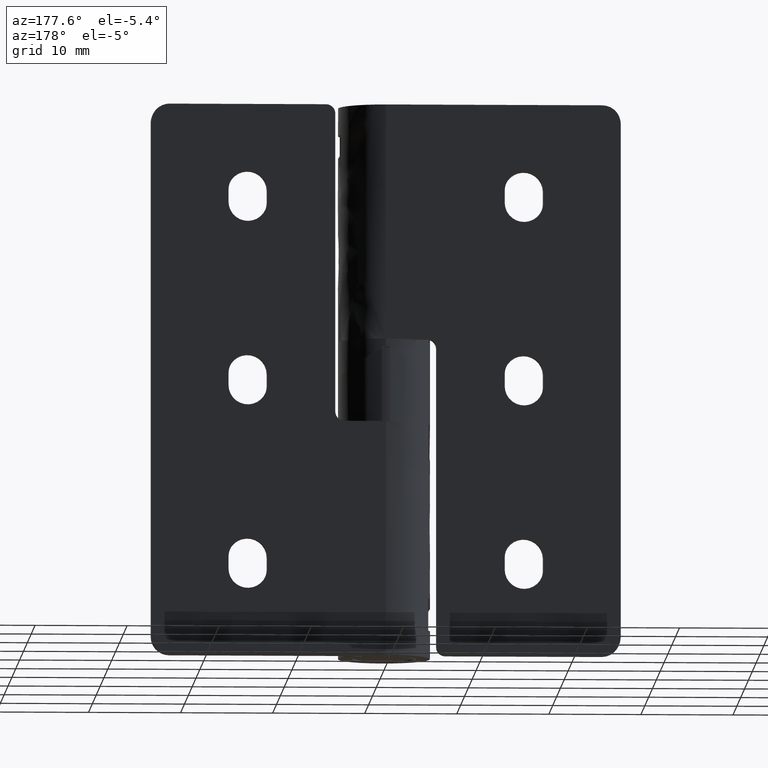
[diagram: clean part render]
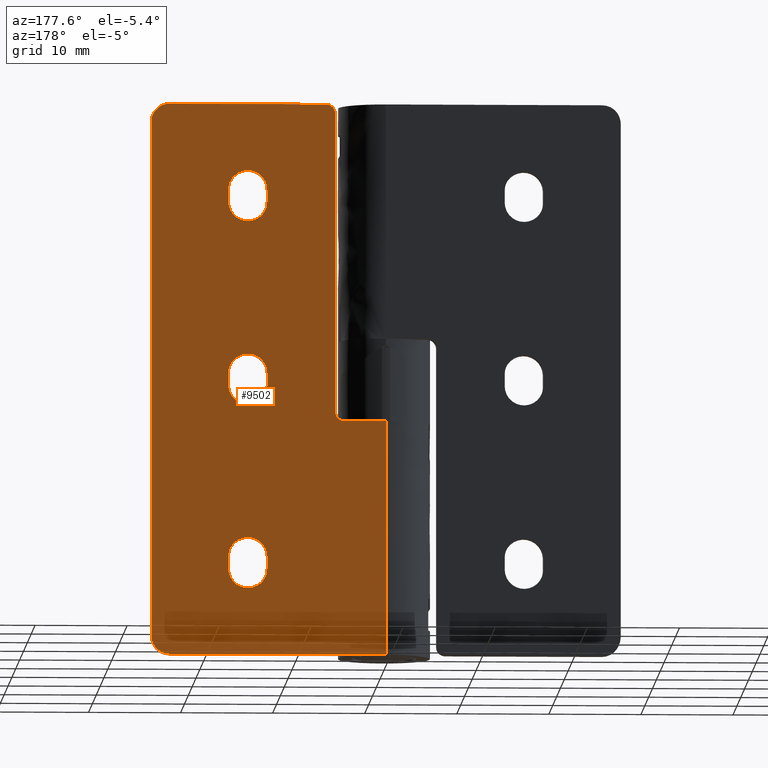
[diagram: same view with one face highlighted and labeled with its STEP entity id]
A machine part, auxiliary view. The second image highlights one B-rep face of the part: STEP entity #9502.
In plain terms, the highlighted face is a freeform B-spline surface patch.
Its self-contained STEP definition (entity closure, byte-faithful):
#8504=CARTESIAN_POINT('',(6.499999739479920,5.0,60.000003029885313));
#8505=VERTEX_POINT('',#8504);
#8511=CARTESIAN_POINT('',(5.499999744077649,5.0,59.000003025287597));
#8512=VERTEX_POINT('',#8511);
#8513=CARTESIAN_POINT('',(6.499999739479917,5.0,60.000003029885313));
#8514=CARTESIAN_POINT('',(5.499999739479918,5.000000000000001,60.000003025287576));
#8515=CARTESIAN_POINT('',(5.499999744077649,5.0,59.000003025287583));
#8523=(BOUNDED_CURVE()B_SPLINE_CURVE(2,(#8513,#8514,#8515),.UNSPECIFIED.,.F.,.U.)CURVE()GEOMETRIC_REPRESENTATION_ITEM()QUASI_UNIFORM_CURVE()RATIONAL_B_SPLINE_CURVE((1.0,0.707106781186548,1.0))REPRESENTATION_ITEM(''));
#8524=EDGE_CURVE('',#8505,#8512,#8523,.T.);
#8563=CARTESIAN_POINT('',(5.499999893503961,5.0,26.500003025287551));
#8564=VERTEX_POINT('',#8563);
#8570=CARTESIAN_POINT('',(4.499999898101685,5.0,25.500003020689800));
#8571=VERTEX_POINT('',#8570);
#8572=CARTESIAN_POINT('',(5.499999893503961,5.0,26.500003025287551));
#8573=CARTESIAN_POINT('',(5.500023779660960,4.999999999998918,26.401831147114549));
#8574=CARTESIAN_POINT('',(5.468479825605675,4.999999999996969,26.189102677533938));
#8575=CARTESIAN_POINT('',(5.334092521173470,4.999999999995375,25.922145515681969));
#8576=CARTESIAN_POINT('',(5.135108733016272,4.999999999995540,25.713217368471820));
#8577=CARTESIAN_POINT('',(4.868027233908998,4.999999999995583,25.548607832608731));
#8578=CARTESIAN_POINT('',(4.639115559884114,4.999999999994005,25.499815792987860));
#8579=CARTESIAN_POINT('',(4.499999898101685,5.0,25.500003020689800));
#8580=B_SPLINE_CURVE_WITH_KNOTS('',3,(#8572,#8573,#8574,#8575,#8576,#8577,#8578,#8579),.UNSPECIFIED.,.F.,.U.,(4,1,1,1,1,4),(0.000000122914308,0.294530854591555,0.638168557413139,0.883591348286724,1.153581488850559,1.570835744345671),.UNSPECIFIED.);
#8581=EDGE_CURVE('',#8564,#8571,#8580,.T.);
#8605=CARTESIAN_POINT('',(25.500000748675351,5.0,58.000003117242301));
#8606=VERTEX_POINT('',#8605);
#8607=CARTESIAN_POINT('',(23.500000739479901,5.0,60.000003108046698));
#8608=VERTEX_POINT('',#8607);
#8609=CARTESIAN_POINT('',(25.500000748675351,5.0,58.000003117242301));
#8610=CARTESIAN_POINT('',(25.500000739479880,5.000000000000001,60.000003117242173));
#8611=CARTESIAN_POINT('',(23.500000739479880,5.0,60.000003108046712));
#8619=(BOUNDED_CURVE()B_SPLINE_CURVE(2,(#8609,#8610,#8611),.UNSPECIFIED.,.F.,.U.)CURVE()GEOMETRIC_REPRESENTATION_ITEM()QUASI_UNIFORM_CURVE()RATIONAL_B_SPLINE_CURVE((1.0,0.707106781186548,1.0))REPRESENTATION_ITEM(''));
#8620=EDGE_CURVE('',#8606,#8608,#8619,.T.);
#8666=CARTESIAN_POINT('',(23.500001015343852,5.0,0.000000108046720));
#8667=VERTEX_POINT('',#8666);
#8668=CARTESIAN_POINT('',(25.500001006148398,5.0,2.000000117242185));
#8669=VERTEX_POINT('',#8668);
#8670=CARTESIAN_POINT('',(23.500001015343869,5.0,0.000000108046720));
#8671=CARTESIAN_POINT('',(25.500001015343859,5.000000000000001,0.000000117242185));
#8672=CARTESIAN_POINT('',(25.500001006148398,5.0,2.000000117242185));
#8680=(BOUNDED_CURVE()B_SPLINE_CURVE(2,(#8670,#8671,#8672),.UNSPECIFIED.,.F.,.U.)CURVE()GEOMETRIC_REPRESENTATION_ITEM()QUASI_UNIFORM_CURVE()RATIONAL_B_SPLINE_CURVE((1.0,0.707106781186548,1.0))REPRESENTATION_ITEM(''));
#8681=EDGE_CURVE('',#8667,#8669,#8680,.T.);
#8724=CARTESIAN_POINT('',(5.499999744077649,5.0,59.000003025287597));
#8725=CARTESIAN_POINT('',(5.499999893503961,5.0,26.500003025287551));
#8726=QUASI_UNIFORM_CURVE('',1,(#8724,#8725),.UNSPECIFIED.,.F.,.U.);
#8727=EDGE_CURVE('',#8512,#8564,#8726,.T.);
#8751=CARTESIAN_POINT('',(17.100000788445751,5.0,49.350003078621299));
#8752=VERTEX_POINT('',#8751);
#8753=CARTESIAN_POINT('',(12.900000788445761,5.0,49.350003059310801));
#8754=VERTEX_POINT('',#8753);
#8755=CARTESIAN_POINT('',(17.100000788445751,5.0,49.350003078621299));
#8756=CARTESIAN_POINT('',(17.100233003752940,4.999999999999999,49.092267066365352));
#8757=CARTESIAN_POINT('',(17.015095770024089,4.999999999999998,48.637141373012170));
#8758=CARTESIAN_POINT('',(16.714744236359589,5.000000000000011,48.099314697320182));
#8759=CARTESIAN_POINT('',(16.380961708083060,4.999999999999976,47.748817404585999));
#8760=CARTESIAN_POINT('',(16.062204712641410,5.000000000000016,47.527256400309547));
#8761=CARTESIAN_POINT('',(15.719604377944860,4.999999999999966,47.365201067593340));
#8762=CARTESIAN_POINT('',(15.377733003407160,5.000000000000008,47.272843578344421));
#8763=CARTESIAN_POINT('',(15.008700412869789,5.000000000000017,47.241077602760811));
#8764=CARTESIAN_POINT('',(14.638946824456220,4.999999999999909,47.268336043517699));
#8765=CARTESIAN_POINT('',(14.255395627047021,5.000000000000257,47.371947887558278));
#8766=CARTESIAN_POINT('',(13.915321978469960,4.999999999999521,47.540539298463322));
#8767=CARTESIAN_POINT('',(13.622122592112710,5.000000000000712,47.752455540418403));
#8768=CARTESIAN_POINT('',(13.349293952558799,4.999999999999675,48.028633306149459));
#8769=CARTESIAN_POINT('',(13.099458902006850,5.000000000000153,48.412585816460258));
#8770=CARTESIAN_POINT('',(12.936199648902470,4.999999999999941,48.868955371715913));
#8771=CARTESIAN_POINT('',(12.899976911013830,4.999999999999994,49.195379707341452));
#8772=CARTESIAN_POINT('',(12.900000788445761,5.0,49.350003059310801));
#8773=B_SPLINE_CURVE_WITH_KNOTS('',3,(#8755,#8756,#8757,#8758,#8759,#8760,#8761,#8762,#8763,#8764,#8765,#8766,#8767,#8768,#8769,#8770,#8771,#8772),.UNSPECIFIED.,.F.,.U.,(4,1,1,1,1,1,1,1,1,1,1,1,1,1,1,4),(0.000000199992646,0.773122435272351,1.365869212335091,1.829757440126785,2.216279771819843,2.525548282736411,2.963658535146335,3.272921822815452,3.633727622652220,4.071837875075631,4.458362436248984,4.767634087121010,5.154198272040064,5.618086839512261,6.133516136368964,6.597385968125869),.UNSPECIFIED.);
#8774=EDGE_CURVE('',#8752,#8754,#8773,.T.);
#8819=CARTESIAN_POINT('',(12.900000782468700,5.0,50.650003059310798));
#8820=VERTEX_POINT('',#8819);
#8821=CARTESIAN_POINT('',(12.900000782468700,5.0,50.650003059310798));
#8822=CARTESIAN_POINT('',(12.900000788445761,5.0,49.350003059310801));
#8823=QUASI_UNIFORM_CURVE('',1,(#8821,#8822),.UNSPECIFIED.,.F.,.U.);
#8824=EDGE_CURVE('',#8820,#8754,#8823,.T.);
#8860=CARTESIAN_POINT('',(17.100000782468701,5.0,50.650003078621197));
#8861=VERTEX_POINT('',#8860);
#8862=CARTESIAN_POINT('',(12.900000782468700,5.0,50.650003059310798));
#8863=CARTESIAN_POINT('',(12.899942904995140,5.000000000000015,50.838988706723953));
#8864=CARTESIAN_POINT('',(12.951349923687379,4.999999999999975,51.216933571189948));
#8865=CARTESIAN_POINT('',(13.169911825343981,5.000000000000020,51.726876986351073));
#8866=CARTESIAN_POINT('',(13.473473437144850,4.999999999999986,52.115786313668600));
#8867=CARTESIAN_POINT('',(13.838409383560840,4.999999999999992,52.419037965700802));
#8868=CARTESIAN_POINT('',(14.237902653597359,5.000000000000043,52.626323751539630));
#8869=CARTESIAN_POINT('',(14.706360310823490,4.999999999999932,52.746707309504842));
#8870=CARTESIAN_POINT('',(15.138573906262369,5.000000000000074,52.759958938427090));
#8871=CARTESIAN_POINT('',(15.631321789381261,4.999999999999817,52.674540031813599));
#8872=CARTESIAN_POINT('',(16.077485830180969,5.000000000000396,52.480036317852573));
#8873=CARTESIAN_POINT('',(16.470490493953669,4.999999999999877,52.169325131075290));
#8874=CARTESIAN_POINT('',(16.737248375452630,5.000000000000047,51.852299793796753));
#8875=CARTESIAN_POINT('',(16.918093169011300,5.000000000000004,51.528413146337279));
#8876=CARTESIAN_POINT('',(17.060301953654779,4.999999999999992,51.131020816422492));
#8877=CARTESIAN_POINT('',(17.100058733441269,5.000000000000004,50.838989881307917));
#8878=CARTESIAN_POINT('',(17.100000782468701,5.0,50.650003078621197));
#8879=B_SPLINE_CURVE_WITH_KNOTS('',3,(#8862,#8863,#8864,#8865,#8866,#8867,#8868,#8869,#8870,#8871,#8872,#8873,#8874,#8875,#8876,#8877,#8878),.UNSPECIFIED.,.F.,.U.,(4,1,1,1,1,1,1,1,1,1,1,1,1,1,4),(0.000000250801382,0.566946133480304,1.133920785924112,1.649348050529942,2.035918147005995,2.551345873050446,2.989474466924640,3.479061220909378,3.839854393712097,4.484159003312733,4.922268989464597,5.334613574758483,5.721176205828394,6.030443597305141,6.597385968147169),.UNSPECIFIED.);
#8880=EDGE_CURVE('',#8820,#8861,#8879,.T.);
#8919=CARTESIAN_POINT('',(17.100000788445751,5.0,49.350003078621299));
#8920=CARTESIAN_POINT('',(17.100000782468701,5.0,50.650003078621197));
#8921=QUASI_UNIFORM_CURVE('',1,(#8919,#8920),.UNSPECIFIED.,.F.,.U.);
#8922=EDGE_CURVE('',#8752,#8861,#8921,.T.);
#8952=CARTESIAN_POINT('',(17.100000880400451,5.0,29.350002078621252));
#8953=VERTEX_POINT('',#8952);
#8954=CARTESIAN_POINT('',(12.900000880400420,5.0,29.350002059310750));
#8955=VERTEX_POINT('',#8954);
#8956=CARTESIAN_POINT('',(17.100000880400451,5.0,29.350002078621252));
#8957=CARTESIAN_POINT('',(17.100044686734119,4.999999999999999,29.178195214874300));
#8958=CARTESIAN_POINT('',(17.062883155953401,4.999999999999993,28.877565882895130));
#8959=CARTESIAN_POINT('',(16.894416893368071,4.999999999999978,28.397263156314189));
#8960=CARTESIAN_POINT('',(16.624528030819960,5.000000000000077,27.982346653159059));
#8961=CARTESIAN_POINT('',(16.285028164668368,4.999999999999874,27.674787557094930));
#8962=CARTESIAN_POINT('',(15.956422042399479,5.000000000000201,27.469512871961530));
#8963=CARTESIAN_POINT('',(15.581608740431321,4.999999999999937,27.314221301944109));
#8964=CARTESIAN_POINT('',(15.197873085184829,4.999999999999931,27.247652134822459));
#8965=CARTESIAN_POINT('',(14.793530656637810,4.999999999999973,27.250145222250492));
#8966=CARTESIAN_POINT('',(14.461448786087130,5.000000000000012,27.307767010869700));
#8967=CARTESIAN_POINT('',(14.065815642947110,4.999999999999949,27.454820557608450));
#8968=CARTESIAN_POINT('',(13.770175814340890,5.000000000000179,27.634483626011850));
#8969=CARTESIAN_POINT('',(13.459125256926100,4.999999999999951,27.906145857220931));
#8970=CARTESIAN_POINT('',(13.226582583773419,4.999999999999999,28.196708541723179));
#8971=CARTESIAN_POINT('',(12.974534327312091,4.999999999999962,28.697314847384831));
#8972=CARTESIAN_POINT('',(12.899758429033101,5.000000000000070,29.083662507357779));
#8973=CARTESIAN_POINT('',(12.900000880400420,5.0,29.350002059310750));
#8974=B_SPLINE_CURVE_WITH_KNOTS('',3,(#8956,#8957,#8958,#8959,#8960,#8961,#8962,#8963,#8964,#8965,#8966,#8967,#8968,#8969,#8970,#8971,#8972,#8973),.UNSPECIFIED.,.F.,.U.,(4,1,1,1,1,1,1,1,1,1,1,1,1,1,1,4),(0.000000250827981,0.515412916722203,0.901970078028647,1.520490472461237,1.984378012515419,2.267866138264282,2.680215326495647,3.195650513812882,3.427542030110919,3.891394545152302,4.200671844441914,4.690322017255857,4.922268989469114,5.437691072663117,5.798506477707226,6.597385968146965),.UNSPECIFIED.);
#8975=EDGE_CURVE('',#8953,#8955,#8974,.T.);
#9019=CARTESIAN_POINT('',(12.900000874423361,5.0,30.650002059310751));
#9020=VERTEX_POINT('',#9019);
#9021=CARTESIAN_POINT('',(12.900000874423361,5.0,30.650002059310751));
#9022=CARTESIAN_POINT('',(12.900000880400420,5.0,29.350002059310750));
#9023=QUASI_UNIFORM_CURVE('',1,(#9021,#9022),.UNSPECIFIED.,.F.,.U.);
#9024=EDGE_CURVE('',#9020,#8955,#9023,.T.);
#9060=CARTESIAN_POINT('',(17.100000874423401,5.0,30.650002078621249));
#9061=VERTEX_POINT('',#9060);
#9062=CARTESIAN_POINT('',(12.900000874423361,5.0,30.650002059310751));
#9063=CARTESIAN_POINT('',(12.899993485876619,5.000000000000011,30.778844071350491));
#9064=CARTESIAN_POINT('',(12.927728385299289,4.999999999999982,31.079504348113961));
#9065=CARTESIAN_POINT('',(13.058404356926211,5.000000000000014,31.492047988591509));
#9066=CARTESIAN_POINT('',(13.299115578299350,5.000000000000025,31.910943234101580));
#9067=CARTESIAN_POINT('',(13.609479639896790,4.999999999999911,32.249208707677582));
#9068=CARTESIAN_POINT('',(13.981424246601600,5.000000000000124,32.500994599186072));
#9069=CARTESIAN_POINT('',(14.369736318927799,4.999999999999942,32.667452874967474));
#9070=CARTESIAN_POINT('',(14.741749346568010,5.000000000000059,32.746206701705582));
#9071=CARTESIAN_POINT('',(15.163679255885439,4.999999999999767,32.756568133383297));
#9072=CARTESIAN_POINT('',(15.547529223512811,5.000000000000095,32.692399762363209));
#9073=CARTESIAN_POINT('',(15.949758106532480,5.000000000000008,32.537229847158351));
#9074=CARTESIAN_POINT('',(16.330713092841510,4.999999999999985,32.299303990656412));
#9075=CARTESIAN_POINT('',(16.653331015182061,4.999999999999998,31.972699464671429));
#9076=CARTESIAN_POINT('',(16.913856683700789,5.000000000000060,31.555622782191939));
#9077=CARTESIAN_POINT('',(17.065850831827980,4.999999999999828,31.122461378706699));
#9078=CARTESIAN_POINT('',(17.100014906155081,5.000000000000249,30.796025730808609));
#9079=CARTESIAN_POINT('',(17.100000874423401,5.0,30.650002078621249));
#9080=B_SPLINE_CURVE_WITH_KNOTS('',3,(#9062,#9063,#9064,#9065,#9066,#9067,#9068,#9069,#9070,#9071,#9072,#9073,#9074,#9075,#9076,#9077,#9078,#9079),.UNSPECIFIED.,.F.,.U.,(4,1,1,1,1,1,1,1,1,1,1,1,1,1,1,4),(0.000000250827529,0.386531670645534,0.901970078027738,1.288542620642028,1.829751291522298,2.267866138264457,2.628677063027066,3.092537799383253,3.401736662217380,3.891394545153548,4.252208902527200,4.690322017258031,5.231530328840890,5.618099942282091,6.159307772893535,6.597385968147163),.UNSPECIFIED.);
#9081=EDGE_CURVE('',#9020,#9061,#9080,.T.);
#9120=CARTESIAN_POINT('',(17.100000880400451,5.0,29.350002078621252));
#9121=CARTESIAN_POINT('',(17.100000874423401,5.0,30.650002078621249));
#9122=QUASI_UNIFORM_CURVE('',1,(#9120,#9121),.UNSPECIFIED.,.F.,.U.);
#9123=EDGE_CURVE('',#8953,#9061,#9122,.T.);
#9153=CARTESIAN_POINT('',(17.100000972355101,5.0,9.350001078621220));
#9154=VERTEX_POINT('',#9153);
#9155=CARTESIAN_POINT('',(12.900000972355080,5.0,9.350001059310751));
#9156=VERTEX_POINT('',#9155);
#9157=CARTESIAN_POINT('',(17.100000972355101,5.0,9.350001078621220));
#9158=CARTESIAN_POINT('',(17.100066012133940,5.000000000000013,9.161005376447804));
#9159=CARTESIAN_POINT('',(17.062630890051029,4.999999999999990,8.886160266755566));
#9160=CARTESIAN_POINT('',(16.925436076478150,5.000000000000006,8.487372510021311));
#9161=CARTESIAN_POINT('',(16.740138158950511,4.999999999999997,8.145711984676757));
#9162=CARTESIAN_POINT('',(16.446567862892579,5.0,7.805393598352444));
#9163=CARTESIAN_POINT('',(16.142716884375002,4.999999999999999,7.577163698089009));
#9164=CARTESIAN_POINT('',(15.807781036821220,5.000000000000004,7.400777461488478));
#9165=CARTESIAN_POINT('',(15.397472528119090,4.999999999999999,7.265143564297432));
#9166=CARTESIAN_POINT('',(14.912712080879510,4.999999999999960,7.232395934951944));
#9167=CARTESIAN_POINT('',(14.436217821177920,5.000000000000024,7.312121363068627));
#9168=CARTESIAN_POINT('',(13.976564305519190,4.999999999999967,7.489349220207349));
#9169=CARTESIAN_POINT('',(13.519076207564330,5.000000000000044,7.819971676209764));
#9170=CARTESIAN_POINT('',(13.164285273527179,4.999999999999987,8.280461789364841));
#9171=CARTESIAN_POINT('',(12.949039630513431,5.000000000000003,8.800257408805528));
#9172=CARTESIAN_POINT('',(12.899940874572840,4.999999999999999,9.161013417815180));
#9173=CARTESIAN_POINT('',(12.900000972355080,5.0,9.350001059310751));
#9174=B_SPLINE_CURVE_WITH_KNOTS('',3,(#9157,#9158,#9159,#9160,#9161,#9162,#9163,#9164,#9165,#9166,#9167,#9168,#9169,#9170,#9171,#9172,#9173),.UNSPECIFIED.,.F.,.U.,(4,1,1,1,1,1,1,1,1,1,1,1,1,1,4),(0.000000199950174,0.566962179308413,0.824665238299120,1.262785809116542,1.726678945022488,2.164788821139765,2.396681276684013,2.860573101954445,3.453323215675446,3.839893146186327,4.303774513115661,4.922250695576807,5.515002470576562,6.030437987214239,6.597385968125871),.UNSPECIFIED.);
#9175=EDGE_CURVE('',#9154,#9156,#9174,.T.);
#9220=CARTESIAN_POINT('',(17.100000966378051,5.0,10.650001078621219));
#9221=VERTEX_POINT('',#9220);
#9222=CARTESIAN_POINT('',(17.100000966378051,5.0,10.650001078621219));
#9223=CARTESIAN_POINT('',(17.100000972355101,5.0,9.350001078621220));
#9224=QUASI_UNIFORM_CURVE('',1,(#9222,#9223),.UNSPECIFIED.,.F.,.U.);
#9225=EDGE_CURVE('',#9221,#9154,#9224,.T.);
#9261=CARTESIAN_POINT('',(12.900000966378020,5.0,10.650001059310760));
#9262=VERTEX_POINT('',#9261);
#9263=CARTESIAN_POINT('',(12.900000966378020,5.0,10.650001059310760));
#9264=CARTESIAN_POINT('',(12.899942017275260,4.999999999999993,10.838992342792540));
#9265=CARTESIAN_POINT('',(12.945536094279211,5.000000000000006,11.173981560354971));
#9266=CARTESIAN_POINT('',(13.112919632612281,5.000000000000008,11.600051728738171));
#9267=CARTESIAN_POINT('',(13.348162729626971,4.999999999999991,11.971567198178960));
#9268=CARTESIAN_POINT('',(13.704746635979919,4.999999999999989,12.337111377655100));
#9269=CARTESIAN_POINT('',(14.171960053342680,5.000000000000017,12.605622064770330));
#9270=CARTESIAN_POINT('',(14.622279150952799,4.999999999999965,12.727141408590921));
#9271=CARTESIAN_POINT('',(14.982716448018010,5.000000000000081,12.758186784084581));
#9272=CARTESIAN_POINT('',(15.318048996100281,5.000000000000005,12.735518707235819));
#9273=CARTESIAN_POINT('',(15.703934050143140,4.999999999999978,12.643909139733690));
#9274=CARTESIAN_POINT('',(16.088128569111419,5.000000000000036,12.465067338458640));
#9275=CARTESIAN_POINT('',(16.452210454487680,5.000000000000034,12.188059198773590));
#9276=CARTESIAN_POINT('',(16.768383059941382,4.999999999999981,11.821581377202669));
#9277=CARTESIAN_POINT('',(17.029569377263918,5.000000000000016,11.302801973872841));
#9278=CARTESIAN_POINT('',(17.100119836935018,4.999999999999992,10.881946745709721));
#9279=CARTESIAN_POINT('',(17.100000966378051,5.0,10.650001078621219));
#9280=B_SPLINE_CURVE_WITH_KNOTS('',3,(#9263,#9264,#9265,#9266,#9267,#9268,#9269,#9270,#9271,#9272,#9273,#9274,#9275,#9276,#9277,#9278,#9279),.UNSPECIFIED.,.F.,.U.,(4,1,1,1,1,1,1,1,1,1,1,1,1,1,4),(0.000000199961501,0.566962179317154,1.005068985731861,1.365869212310734,1.881291575051250,2.525548282717050,2.963658535128605,3.272921822798931,3.607946934604922,3.968760197278115,4.458362436237685,4.870709456831889,5.334603348248064,5.901570323388700,6.597385968125894),.UNSPECIFIED.);
#9281=EDGE_CURVE('',#9262,#9221,#9280,.T.);
#9319=CARTESIAN_POINT('',(12.900000972355080,5.0,9.350001059310751));
#9320=CARTESIAN_POINT('',(12.900000966378020,5.0,10.650001059310760));
#9321=QUASI_UNIFORM_CURVE('',1,(#9319,#9320),.UNSPECIFIED.,.F.,.U.);
#9322=EDGE_CURVE('',#9156,#9262,#9321,.T.);
#9352=CARTESIAN_POINT('',(0.000000015343861,5.0,7.054697E-017));
#9353=VERTEX_POINT('',#9352);
#9391=CARTESIAN_POINT('',(0.000000015343861,5.0,7.054697E-017));
#9392=CARTESIAN_POINT('',(23.500001015343852,5.0,0.000000108046720));
#9393=QUASI_UNIFORM_CURVE('',1,(#9391,#9392),.UNSPECIFIED.,.F.,.U.);
#9394=EDGE_CURVE('',#9353,#8667,#9393,.T.);
#9405=CARTESIAN_POINT('',(25.500000748675351,5.0,58.000003117242301));
#9406=CARTESIAN_POINT('',(25.500001006148398,5.0,2.000000117242185));
#9407=QUASI_UNIFORM_CURVE('',1,(#9405,#9406),.UNSPECIFIED.,.F.,.U.);
#9408=EDGE_CURVE('',#8606,#8669,#9407,.T.);
#9431=CARTESIAN_POINT('',(6.499999739479920,5.0,60.000003029885313));
#9432=CARTESIAN_POINT('',(23.500000739479901,5.0,60.000003108046698));
#9433=QUASI_UNIFORM_CURVE('',1,(#9431,#9432),.UNSPECIFIED.,.F.,.U.);
#9434=EDGE_CURVE('',#8505,#8608,#9433,.T.);
#9457=CARTESIAN_POINT('',(-1.273725374192986,5.0,62.997003027702149));
#9458=CARTESIAN_POINT('',(-1.273725070770200,5.0,-2.997001648740092));
#9459=CARTESIAN_POINT('',(26.773726414917149,5.0,62.997003156656831));
#9460=CARTESIAN_POINT('',(26.773726718339940,5.0,-2.997001519785409));
#9461=B_SPLINE_SURFACE_WITH_KNOTS('',1,1,((#9457,#9459),(#9458,#9460)),.UNSPECIFIED.,.F.,.F.,.U.,(2,2),(2,2),(0.0,65.994004676442245),(0.0,28.047451789110141),.UNSPECIFIED.);
#9462=ORIENTED_EDGE('',*,*,#9434,.T.);
#9463=ORIENTED_EDGE('',*,*,#8620,.F.);
#9464=ORIENTED_EDGE('',*,*,#9408,.T.);
#9465=ORIENTED_EDGE('',*,*,#8681,.F.);
#9466=ORIENTED_EDGE('',*,*,#9394,.F.);
#9467=CARTESIAN_POINT('',(-0.000000196538480,5.0,25.500003000000049));
#9468=VERTEX_POINT('',#9467);
#9469=CARTESIAN_POINT('',(-0.000000196538480,5.0,25.500003000000049));
#9470=CARTESIAN_POINT('',(0.000000015343861,5.0,7.054697E-017));
#9471=QUASI_UNIFORM_CURVE('',1,(#9469,#9470),.UNSPECIFIED.,.F.,.U.);
#9472=EDGE_CURVE('',#9468,#9353,#9471,.T.);
#9473=ORIENTED_EDGE('',*,*,#9472,.F.);
#9474=CARTESIAN_POINT('',(4.499999898101685,5.0,25.500003020689800));
#9475=CARTESIAN_POINT('',(-0.000000196538480,5.0,25.500003000000049));
#9476=QUASI_UNIFORM_CURVE('',1,(#9474,#9475),.UNSPECIFIED.,.F.,.U.);
#9477=EDGE_CURVE('',#8571,#9468,#9476,.T.);
#9478=ORIENTED_EDGE('',*,*,#9477,.F.);
#9479=ORIENTED_EDGE('',*,*,#8581,.F.);
#9480=ORIENTED_EDGE('',*,*,#8727,.F.);
#9481=ORIENTED_EDGE('',*,*,#8524,.F.);
#9482=EDGE_LOOP('',(#9462,#9463,#9464,#9465,#9466,#9473,#9478,#9479,#9480,#9481));
#9483=FACE_OUTER_BOUND('',#9482,.T.);
#9484=ORIENTED_EDGE('',*,*,#9081,.F.);
#9485=ORIENTED_EDGE('',*,*,#9024,.T.);
#9486=ORIENTED_EDGE('',*,*,#8975,.F.);
#9487=ORIENTED_EDGE('',*,*,#9123,.T.);
#9488=EDGE_LOOP('',(#9484,#9485,#9486,#9487));
#9489=FACE_BOUND('',#9488,.T.);
#9490=ORIENTED_EDGE('',*,*,#8880,.F.);
#9491=ORIENTED_EDGE('',*,*,#8824,.T.);
#9492=ORIENTED_EDGE('',*,*,#8774,.F.);
#9493=ORIENTED_EDGE('',*,*,#8922,.T.);
#9494=EDGE_LOOP('',(#9490,#9491,#9492,#9493));
#9495=FACE_BOUND('',#9494,.T.);
#9496=ORIENTED_EDGE('',*,*,#9322,.F.);
#9497=ORIENTED_EDGE('',*,*,#9175,.F.);
#9498=ORIENTED_EDGE('',*,*,#9225,.F.);
#9499=ORIENTED_EDGE('',*,*,#9281,.F.);
#9500=EDGE_LOOP('',(#9496,#9497,#9498,#9499));
#9501=FACE_BOUND('',#9500,.T.);
#9502=ADVANCED_FACE('',(#9483,#9489,#9495,#9501),#9461,.F.);